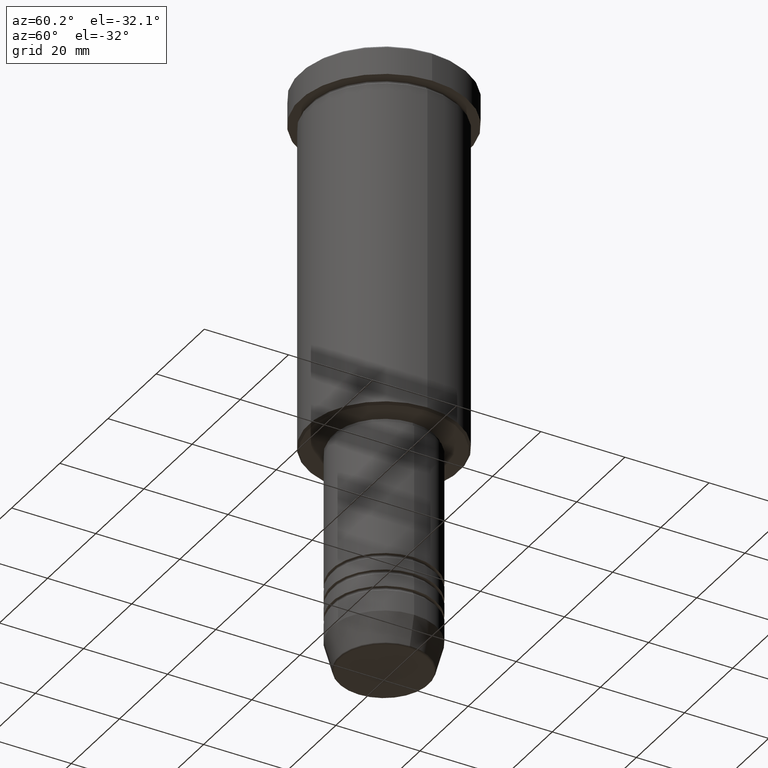
[diagram: clean part render]
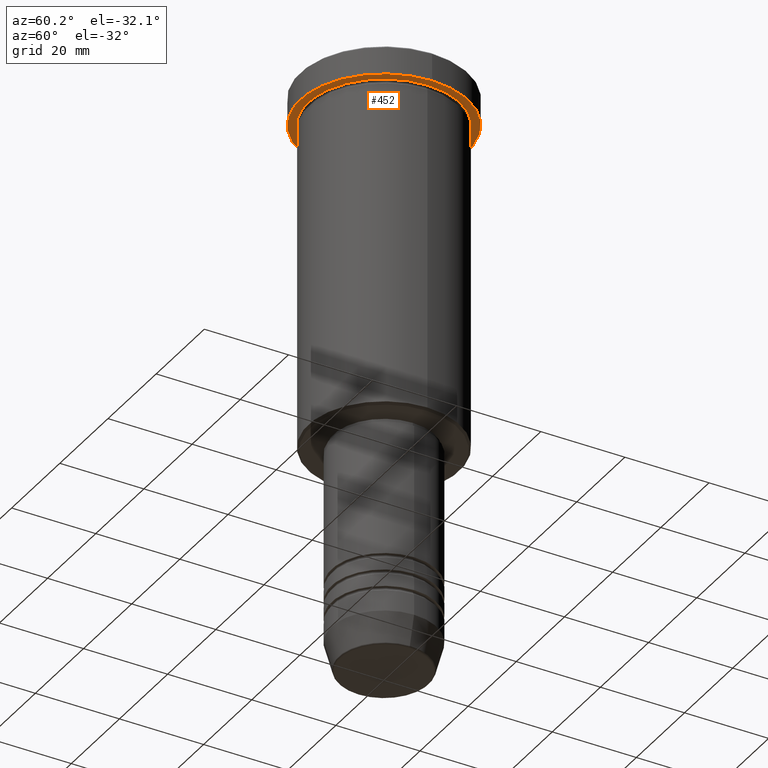
[diagram: same view with one face highlighted and labeled with its STEP entity id]
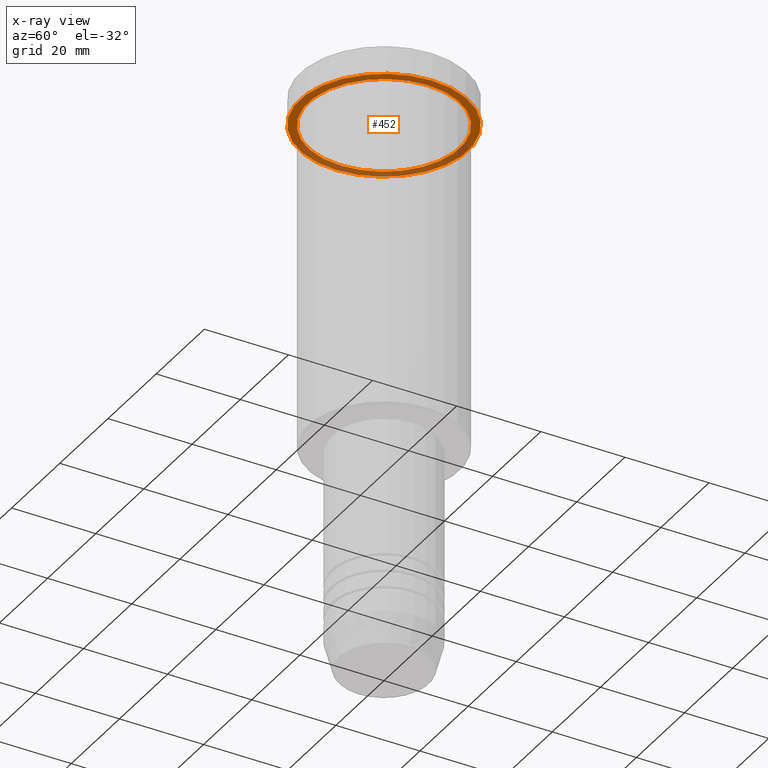
[diagram: x-ray of the same camera — body ghosted, the highlighted face saturated]
A machine part, auxiliary view. The second image highlights one B-rep face of the part: STEP entity #452.
The next image is the same camera in x-ray: the body ghosted, the highlighted face saturated — about 37% of this face is hidden behind the body in this view.
In plain terms, the highlighted planar face has unit normal (0, 0, -1).
Its self-contained STEP definition (entity closure, byte-faithful):
#34 = ORIENTED_EDGE ( 'NONE', *, *, #671, .T. ) ;
#35 = DIRECTION ( 'NONE',  ( 1.000000000000000000, 0.000000000000000000, 0.000000000000000000 ) ) ;
#49 = DIRECTION ( 'NONE',  ( -0.000000000000000000, -0.000000000000000000, 1.000000000000000000 ) ) ;
#54 = ORIENTED_EDGE ( 'NONE', *, *, #662, .T. ) ;
#118 = DIRECTION ( 'NONE',  ( -1.000000000000000000, 0.000000000000000000, 0.000000000000000000 ) ) ;
#136 = AXIS2_PLACEMENT_3D ( 'NONE', #942, #477, #35 ) ;
#193 = FACE_OUTER_BOUND ( 'NONE', #458, .T. ) ;
#281 = CIRCLE ( 'NONE', #1144, 18.00000000000000000 ) ;
#287 = DIRECTION ( 'NONE',  ( 0.000000000000000000, 0.000000000000000000, -1.000000000000000000 ) ) ;
#291 = DIRECTION ( 'NONE',  ( -0.000000000000000000, -0.000000000000000000, 1.000000000000000000 ) ) ;
#304 = DIRECTION ( 'NONE',  ( 1.000000000000000000, 0.000000000000000000, 0.000000000000000000 ) ) ;
#378 = CARTESIAN_POINT ( 'NONE',  ( 0.000000000000000000, 0.000000000000000000, -6.999999999999995559 ) ) ;
#414 = AXIS2_PLACEMENT_3D ( 'NONE', #824, #287, #654 ) ;
#452 = ADVANCED_FACE ( 'NONE', ( #1010, #193 ), #459, .T. ) ;
#458 = EDGE_LOOP ( 'NONE', ( #855, #768 ) ) ;
#459 = PLANE ( 'NONE',  #414 ) ;
#477 = DIRECTION ( 'NONE',  ( -0.000000000000000000, -0.000000000000000000, 1.000000000000000000 ) ) ;
#496 = CARTESIAN_POINT ( 'NONE',  ( -18.00000000000000000, 0.000000000000000000, -6.999999999999995559 ) ) ;
#576 = CARTESIAN_POINT ( 'NONE',  ( 0.000000000000000000, 0.000000000000000000, -6.999999999999995559 ) ) ;
#586 = VERTEX_POINT ( 'NONE', #496 ) ;
#610 = CIRCLE ( 'NONE', #1164, 18.00000000000000000 ) ;
#624 = AXIS2_PLACEMENT_3D ( 'NONE', #576, #49, #304 ) ;
#633 = DIRECTION ( 'NONE',  ( -1.000000000000000000, 0.000000000000000000, 0.000000000000000000 ) ) ;
#654 = DIRECTION ( 'NONE',  ( -1.000000000000000000, 0.000000000000000000, -0.000000000000000000 ) ) ;
#662 = EDGE_CURVE ( 'NONE', #586, #1100, #281, .T. ) ;
#671 = EDGE_CURVE ( 'NONE', #1100, #586, #610, .T. ) ;
#691 = VERTEX_POINT ( 'NONE', #956 ) ;
#743 = CARTESIAN_POINT ( 'NONE',  ( 0.000000000000000000, 0.000000000000000000, -6.999999999999995559 ) ) ;
#768 = ORIENTED_EDGE ( 'NONE', *, *, #1086, .F. ) ;
#816 = VERTEX_POINT ( 'NONE', #820 ) ;
#820 = CARTESIAN_POINT ( 'NONE',  ( 20.00000000000000000, 0.000000000000000000, -6.999999999999995559 ) ) ;
#824 = CARTESIAN_POINT ( 'NONE',  ( 0.000000000000000000, 20.00000000000000000, -6.999999999999995559 ) ) ;
#855 = ORIENTED_EDGE ( 'NONE', *, *, #1000, .F. ) ;
#942 = CARTESIAN_POINT ( 'NONE',  ( 0.000000000000000000, 0.000000000000000000, -6.999999999999995559 ) ) ;
#956 = CARTESIAN_POINT ( 'NONE',  ( -20.00000000000000000, 2.449293598294706513E-15, -6.999999999999995559 ) ) ;
#1000 = EDGE_CURVE ( 'NONE', #816, #691, #1147, .T. ) ;
#1007 = CIRCLE ( 'NONE', #136, 20.00000000000000000 ) ;
#1010 = FACE_BOUND ( 'NONE', #1030, .T. ) ;
#1030 = EDGE_LOOP ( 'NONE', ( #54, #34 ) ) ;
#1086 = EDGE_CURVE ( 'NONE', #691, #816, #1007, .T. ) ;
#1100 = VERTEX_POINT ( 'NONE', #1131 ) ;
#1131 = CARTESIAN_POINT ( 'NONE',  ( 18.00000000000000000, 2.204364238465235428E-15, -6.999999999999995559 ) ) ;
#1144 = AXIS2_PLACEMENT_3D ( 'NONE', #378, #291, #633 ) ;
#1147 = CIRCLE ( 'NONE', #624, 20.00000000000000000 ) ;
#1164 = AXIS2_PLACEMENT_3D ( 'NONE', #743, #1183, #118 ) ;
#1183 = DIRECTION ( 'NONE',  ( -0.000000000000000000, -0.000000000000000000, 1.000000000000000000 ) ) ;